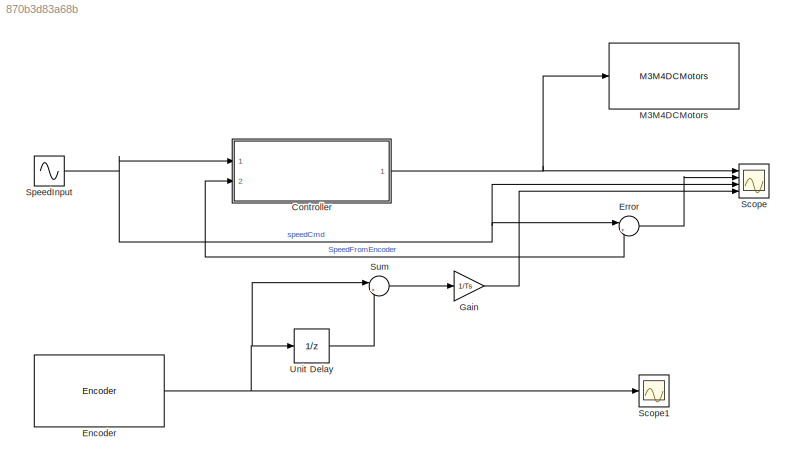
MODEL slx_870b3d83a68b
KIND model
CONFIG AbsTol = auto
CONFIG EnableMultiTasking = on
CONFIG FixedStep = auto
CONFIG MaxStep = auto
CONFIG MinStep = auto
CONFIG RelTol = 1e-3
CONFIG SampleTimeConstraint = Unconstrained
CONFIG Solver = FixedStepAuto
CONFIG SolverName = FixedStepAuto
CONFIG StartTime = 0.0
CONFIG StopTime = inf
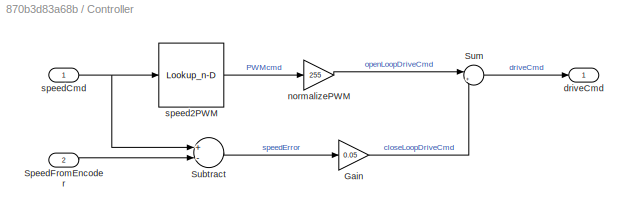
BLOCK [SubSystem] Controller
  Ports = [2, 1]
  RequestExecContextInheritance = off
BLOCK [Gain] Controller/Gain
  Gain = 0.05
  OutDataTypeStr = Inherit: Inherit via internal rule
  ParamDataTypeStr = Inherit: Inherit via internal rule
  SaturateOnIntegerOverflow = off
BLOCK [Inport] Controller/SpeedFromEncoder
  IconDisplay = Port number
  Port = 2
BLOCK [Sum] Controller/Subtract
  InputSameDT = off
  Inputs = +-
  OutDataTypeStr = Inherit: Inherit via internal rule
  Ports = [2, 1]
  SaturateOnIntegerOverflow = off
BLOCK [Sum] Controller/Sum
  IconShape = round
  InputSameDT = off
  Inputs = |++
  OutDataTypeStr = Inherit: Inherit via internal rule
  Ports = [2, 1]
  SaturateOnIntegerOverflow = off
BLOCK [Outport] Controller/driveCmd
  IconDisplay = Port number
BLOCK [Gain] Controller/normalizePWM
  Gain = 255
  OutDataTypeStr = Inherit: Inherit via internal rule
  ParamDataTypeStr = Inherit: Inherit via internal rule
  SaturateOnIntegerOverflow = off
BLOCK [Lookup_n-D] Controller/speed2PWM
  BreakpointsForDimension1 = speedMono
  InternalRulePriority = Speed
  NumberOfTableDimensions = 1
  Ports = [1, 1]
  RndMeth = Simplest
  Table = PWMcmdMono
BLOCK [Inport] Controller/speedCmd
  IconDisplay = Port number
BLOCK [Reference] Encoder  REF=mkrmotorcarrierlib/Encoder
  Ports = [0, 1]
  SourceBlock = mkrmotorcarrierlib/Encoder
  SourceProductBaseCode = ARDUINO
  SourceProductName = Simulink Support Package for Arduino Hardware
  SourceType = motorcarrier.blocks.mkrmotorcarrier_Encoder
BLOCK [Sum] Error
  IconShape = round
  InputSameDT = off
  Inputs = |+-
  OutDataTypeStr = Inherit: Inherit via internal rule
  Ports = [2, 1]
  SaturateOnIntegerOverflow = off
BLOCK [Gain] Gain
  Gain = 1/Ts
  OutDataTypeStr = Inherit: Inherit via internal rule
  ParamDataTypeStr = Inherit: Inherit via internal rule
  SaturateOnIntegerOverflow = off
BLOCK [Reference] M3M4DCMotors  REF=mkrmotorcarrierlib/M3M4DCMotors
  Ports = [1]
  SourceBlock = mkrmotorcarrierlib/M3M4DCMotors
  SourceProductBaseCode = ARDUINO
  SourceProductName = Simulink Support Package for Arduino Hardware
  SourceType = DC Motor
BLOCK [Scope] Scope
  Floating = off
  NumInputPorts = 4
  Ports = [4]
  ScopeSpecificationString = Simulink.scopes.TimeScopeBlockCfg('CurrentConfiguration', extmgr.ConfigurationSet(extmgr.Configuration('Core','General UI',true),extmgr.Configuration('Core','Source UI',true),extmgr.Configuration('Sources','WiredSimulink',true),extmgr.Configuration('Visuals','Time Domain',true,'SerializedDisplays',{struct('MinYLimReal','-605.7306','MaxYLimReal','557.01936','YLabelReal','','MinYLimMag',' 0.00000','...<+2830ch>
BLOCK [Scope] Scope1
  Floating = off
  NumInputPorts = 1
  Ports = [1]
  ScopeSpecificationString = Simulink.scopes.TimeScopeBlockCfg('CurrentConfiguration', extmgr.ConfigurationSet(extmgr.Configuration('Core','General UI',true),extmgr.Configuration('Core','Source UI',true),extmgr.Configuration('Sources','WiredSimulink',true,'DataLoggingVariableName','ScopeData1'),extmgr.Configuration('Visuals','Time Domain',true,'SerializedDisplays',{struct('MinYLimReal','22875.25','MaxYLimReal','30902.75','YLa...<+1401ch>
BLOCK [Sin] SpeedInput 
  Amplitude = 6000
  Ports = [0, 1]
  SampleTime = Ts
BLOCK [Sum] Sum
  IconShape = round
  InputSameDT = off
  Inputs = |+-
  OutDataTypeStr = Inherit: Inherit via internal rule
  Ports = [2, 1]
  SaturateOnIntegerOverflow = off
BLOCK [UnitDelay] Unit Delay
  HasFrameUpgradeWarning = on
  SampleTime = -1
LINE Controller/Gain:1 -> Controller/Sum:2
LINE Controller/SpeedFromEncoder:1 -> Controller/Subtract:2
LINE Controller/Subtract:1 -> Controller/Gain:1
LINE Controller/Sum:1 -> Controller/driveCmd:1
LINE Controller/normalizePWM:1 -> Controller/Sum:1
LINE Controller/speed2PWM:1 -> Controller/normalizePWM:1
NET Controller/speedCmd:1 -> Controller/Subtract:1, Controller/speed2PWM:1
NET Controller:1 -> M3M4DCMotors:1, Scope:1
NET Encoder:1 -> Scope1:1, Sum:1, Unit Delay:1
LINE Error:1 -> Scope:2
NET Gain:1 -> Controller:2, Error:2, Scope:4
NET SpeedInput :1 -> Controller:1, Error:1, Scope:3
LINE Sum:1 -> Gain:1
LINE Unit Delay:1 -> Sum:2
note: NET lines group one-source signal fan-out (src -> all destinations, sorted); 1:1 wires keep LINE
